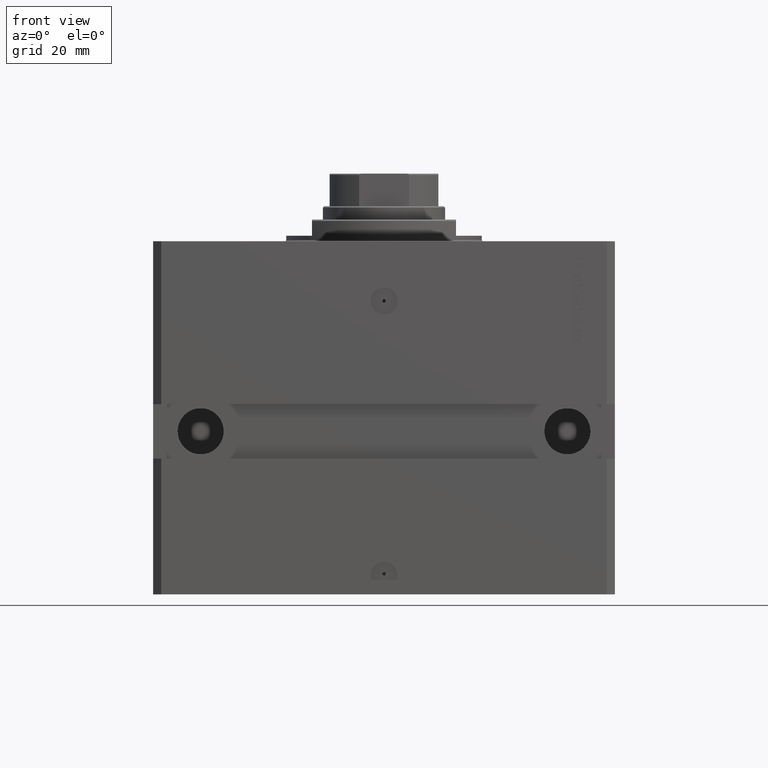
[diagram: clean part render]
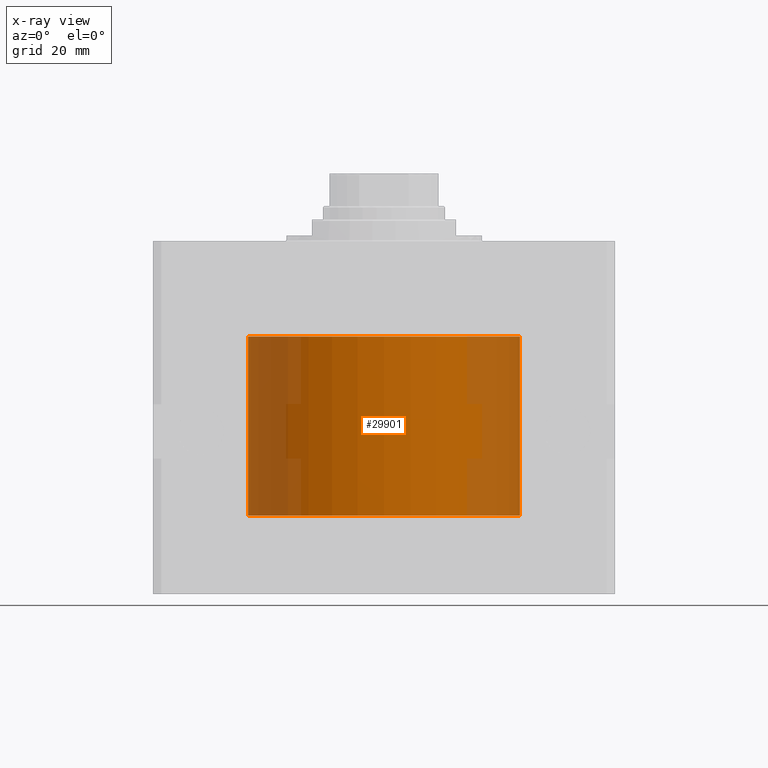
[diagram: x-ray — body ghosted, one internal face saturated and labeled with its STEP entity id]
A machine part, front view, then the same camera in x-ray: the body is ghosted and one INTERNAL B-rep face — a face not visible from any outside direction — is saturated and labeled: STEP entity #29901.
In plain terms, the highlighted cylindrical surface (partial cylindrical patch) has radius 50 mm, axis along (0, 0, 1).
Its self-contained STEP definition (entity closure, byte-faithful):
#1212 = CARTESIAN_POINT ( 'NONE',  ( 50.00000000000000000, 0.000000000000000000, -101.0999999999999943 ) ) ;
#2550 = CIRCLE ( 'NONE', #23302, 50.00000000000000000 ) ;
#2954 = DIRECTION ( 'NONE',  ( 0.000000000000000000, 0.000000000000000000, 1.000000000000000000 ) ) ;
#3289 = DIRECTION ( 'NONE',  ( 0.000000000000000000, 0.000000000000000000, 1.000000000000000000 ) ) ;
#3368 = AXIS2_PLACEMENT_3D ( 'NONE', #21575, #3571, #17664 ) ;
#3571 = DIRECTION ( 'NONE',  ( -0.000000000000000000, -0.000000000000000000, 1.000000000000000000 ) ) ;
#4018 = FACE_OUTER_BOUND ( 'NONE', #11888, .T. ) ;
#5690 = VECTOR ( 'NONE', #35902, 1000.000000000000000 ) ;
#6395 = CIRCLE ( 'NONE', #35155, 50.00000000000000000 ) ;
#8317 = EDGE_CURVE ( 'NONE', #8358, #45432, #6395, .T. ) ;
#8358 = VERTEX_POINT ( 'NONE', #14369 ) ;
#8628 = CARTESIAN_POINT ( 'NONE',  ( -50.00000000000000000, 6.123233995736766085E-15, -35.10000000000000142 ) ) ;
#9691 = CARTESIAN_POINT ( 'NONE',  ( -50.00000000000000000, 6.123233995736766085E-15, -101.0999999999999943 ) ) ;
#11888 = EDGE_LOOP ( 'NONE', ( #20350, #12524, #42202, #37183 ) ) ;
#12524 = ORIENTED_EDGE ( 'NONE', *, *, #19555, .T. ) ;
#14369 = CARTESIAN_POINT ( 'NONE',  ( -50.00000000000000000, 6.123233995736766085E-15, -101.0999999999999943 ) ) ;
#17045 = DIRECTION ( 'NONE',  ( 1.000000000000000000, 0.000000000000000000, 0.000000000000000000 ) ) ;
#17162 = VERTEX_POINT ( 'NONE', #8628 ) ;
#17379 = DIRECTION ( 'NONE',  ( 1.000000000000000000, 0.000000000000000000, 0.000000000000000000 ) ) ;
#17664 = DIRECTION ( 'NONE',  ( 1.000000000000000000, 0.000000000000000000, 0.000000000000000000 ) ) ;
#18447 = CARTESIAN_POINT ( 'NONE',  ( 50.00000000000000000, 0.000000000000000000, -35.10000000000000142 ) ) ;
#19555 = EDGE_CURVE ( 'NONE', #8358, #17162, #42037, .T. ) ;
#20350 = ORIENTED_EDGE ( 'NONE', *, *, #8317, .F. ) ;
#21575 = CARTESIAN_POINT ( 'NONE',  ( 0.000000000000000000, 0.000000000000000000, -101.0999999999999943 ) ) ;
#23302 = AXIS2_PLACEMENT_3D ( 'NONE', #34616, #2954, #17045 ) ;
#29901 = ADVANCED_FACE ( 'NONE', ( #4018 ), #39383, .F. ) ;
#30900 = EDGE_CURVE ( 'NONE', #17162, #44513, #2550, .T. ) ;
#33297 = CARTESIAN_POINT ( 'NONE',  ( 50.00000000000000000, 0.000000000000000000, -101.0999999999999943 ) ) ;
#34616 = CARTESIAN_POINT ( 'NONE',  ( 0.000000000000000000, 0.000000000000000000, -35.10000000000000142 ) ) ;
#34953 = CARTESIAN_POINT ( 'NONE',  ( 0.000000000000000000, 0.000000000000000000, -101.0999999999999943 ) ) ;
#35107 = DIRECTION ( 'NONE',  ( -0.000000000000000000, -0.000000000000000000, 1.000000000000000000 ) ) ;
#35155 = AXIS2_PLACEMENT_3D ( 'NONE', #34953, #3289, #17379 ) ;
#35902 = DIRECTION ( 'NONE',  ( -0.000000000000000000, -0.000000000000000000, 1.000000000000000000 ) ) ;
#37183 = ORIENTED_EDGE ( 'NONE', *, *, #37843, .F. ) ;
#37843 = EDGE_CURVE ( 'NONE', #45432, #44513, #43280, .T. ) ;
#39383 = CYLINDRICAL_SURFACE ( 'NONE', #3368, 50.00000000000000000 ) ;
#41243 = VECTOR ( 'NONE', #35107, 1000.000000000000000 ) ;
#42037 = LINE ( 'NONE', #9691, #41243 ) ;
#42202 = ORIENTED_EDGE ( 'NONE', *, *, #30900, .T. ) ;
#43280 = LINE ( 'NONE', #1212, #5690 ) ;
#44513 = VERTEX_POINT ( 'NONE', #18447 ) ;
#45432 = VERTEX_POINT ( 'NONE', #33297 ) ;